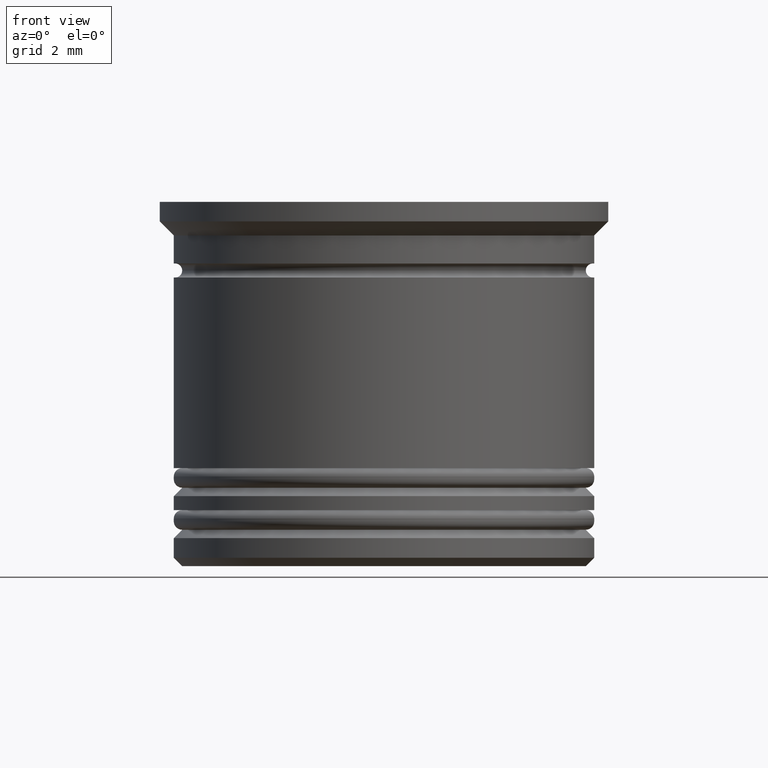
[diagram: clean part render]
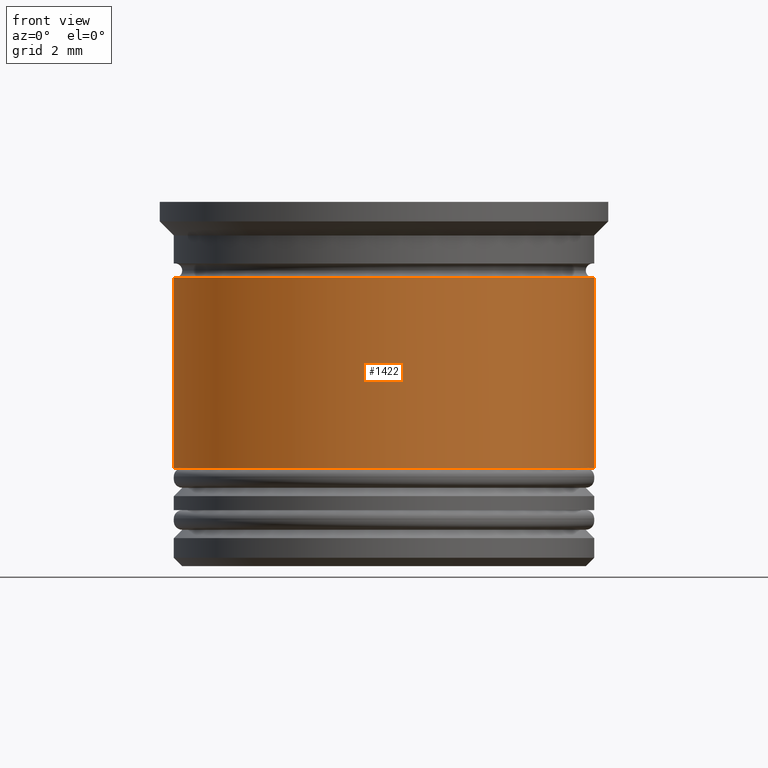
[diagram: same view with one face highlighted and labeled with its STEP entity id]
A machine part, front view. The second image highlights one B-rep face of the part: STEP entity #1422.
In plain terms, the highlighted cylindrical surface (partial cylindrical patch) has radius 7.5 mm, axis along (-0, -0, 1).
Its self-contained STEP definition (entity closure, byte-faithful):
#93 = ORIENTED_EDGE ( 'NONE', *, *, #1806, .F. ) ;
#137 = EDGE_CURVE ( 'NONE', #447, #390, #1447, .T. ) ;
#202 = ORIENTED_EDGE ( 'NONE', *, *, #756, .T. ) ;
#390 = VERTEX_POINT ( 'NONE', #791 ) ;
#432 = AXIS2_PLACEMENT_3D ( 'NONE', #864, #879, #1520 ) ;
#447 = VERTEX_POINT ( 'NONE', #1591 ) ;
#729 = EDGE_CURVE ( 'NONE', #1078, #390, #839, .T. ) ;
#756 = EDGE_CURVE ( 'NONE', #1029, #447, #1981, .T. ) ;
#791 = CARTESIAN_POINT ( 'NONE',  ( 7.499999999999998224, 0.000000000000000000, -2.700000000000000178 ) ) ;
#839 = CIRCLE ( 'NONE', #432, 7.499999999999998224 ) ;
#842 = CARTESIAN_POINT ( 'NONE',  ( 0.000000000000000000, 0.000000000000000000, 0.000000000000000000 ) ) ;
#864 = CARTESIAN_POINT ( 'NONE',  ( 0.000000000000000000, 0.000000000000000000, -2.700000000000000178 ) ) ;
#872 = VECTOR ( 'NONE', #1945, 1000.000000000000000 ) ;
#879 = DIRECTION ( 'NONE',  ( -0.000000000000000000, -0.000000000000000000, 1.000000000000000000 ) ) ;
#972 = FACE_OUTER_BOUND ( 'NONE', #1541, .T. ) ;
#1029 = VERTEX_POINT ( 'NONE', #1892 ) ;
#1078 = VERTEX_POINT ( 'NONE', #1629 ) ;
#1129 = DIRECTION ( 'NONE',  ( 1.000000000000000000, 0.000000000000000000, 0.000000000000000000 ) ) ;
#1176 = AXIS2_PLACEMENT_3D ( 'NONE', #1332, #1345, #1959 ) ;
#1216 = CARTESIAN_POINT ( 'NONE',  ( -7.500000000000000000, 9.184850993605147944E-16, 0.000000000000000000 ) ) ;
#1332 = CARTESIAN_POINT ( 'NONE',  ( 0.000000000000000000, 0.000000000000000000, -9.500000000000000000 ) ) ;
#1343 = LINE ( 'NONE', #1216, #872 ) ;
#1345 = DIRECTION ( 'NONE',  ( -0.000000000000000000, -0.000000000000000000, 1.000000000000000000 ) ) ;
#1422 = ADVANCED_FACE ( 'NONE', ( #972 ), #1611, .T. ) ;
#1430 = DIRECTION ( 'NONE',  ( -0.000000000000000000, -0.000000000000000000, 1.000000000000000000 ) ) ;
#1447 = LINE ( 'NONE', #1732, #1534 ) ;
#1520 = DIRECTION ( 'NONE',  ( 1.000000000000000000, 0.000000000000000000, 0.000000000000000000 ) ) ;
#1534 = VECTOR ( 'NONE', #1430, 1000.000000000000000 ) ;
#1541 = EDGE_LOOP ( 'NONE', ( #93, #202, #1580, #1885 ) ) ;
#1580 = ORIENTED_EDGE ( 'NONE', *, *, #137, .T. ) ;
#1589 = AXIS2_PLACEMENT_3D ( 'NONE', #842, #1906, #1129 ) ;
#1591 = CARTESIAN_POINT ( 'NONE',  ( 7.500000000000001776, 0.000000000000000000, -9.500000000000000000 ) ) ;
#1611 = CYLINDRICAL_SURFACE ( 'NONE', #1589, 7.500000000000000000 ) ;
#1629 = CARTESIAN_POINT ( 'NONE',  ( -7.499999999999998224, 9.184850993605145972E-16, -2.700000000000000178 ) ) ;
#1732 = CARTESIAN_POINT ( 'NONE',  ( 7.500000000000000000, 0.000000000000000000, 0.000000000000000000 ) ) ;
#1806 = EDGE_CURVE ( 'NONE', #1029, #1078, #1343, .T. ) ;
#1885 = ORIENTED_EDGE ( 'NONE', *, *, #729, .F. ) ;
#1892 = CARTESIAN_POINT ( 'NONE',  ( -7.500000000000001776, 9.184850993605149917E-16, -9.500000000000000000 ) ) ;
#1906 = DIRECTION ( 'NONE',  ( -0.000000000000000000, -0.000000000000000000, 1.000000000000000000 ) ) ;
#1945 = DIRECTION ( 'NONE',  ( -0.000000000000000000, -0.000000000000000000, 1.000000000000000000 ) ) ;
#1959 = DIRECTION ( 'NONE',  ( 1.000000000000000000, 0.000000000000000000, 0.000000000000000000 ) ) ;
#1981 = CIRCLE ( 'NONE', #1176, 7.500000000000001776 ) ;